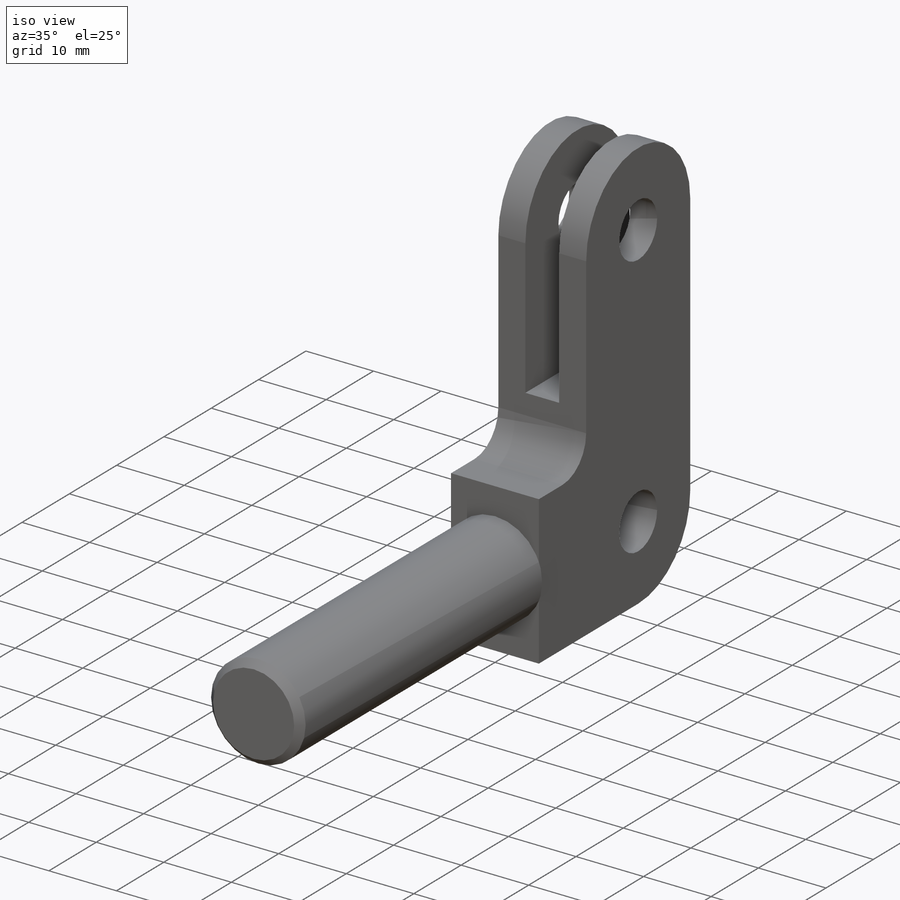
[diagram: iso view]
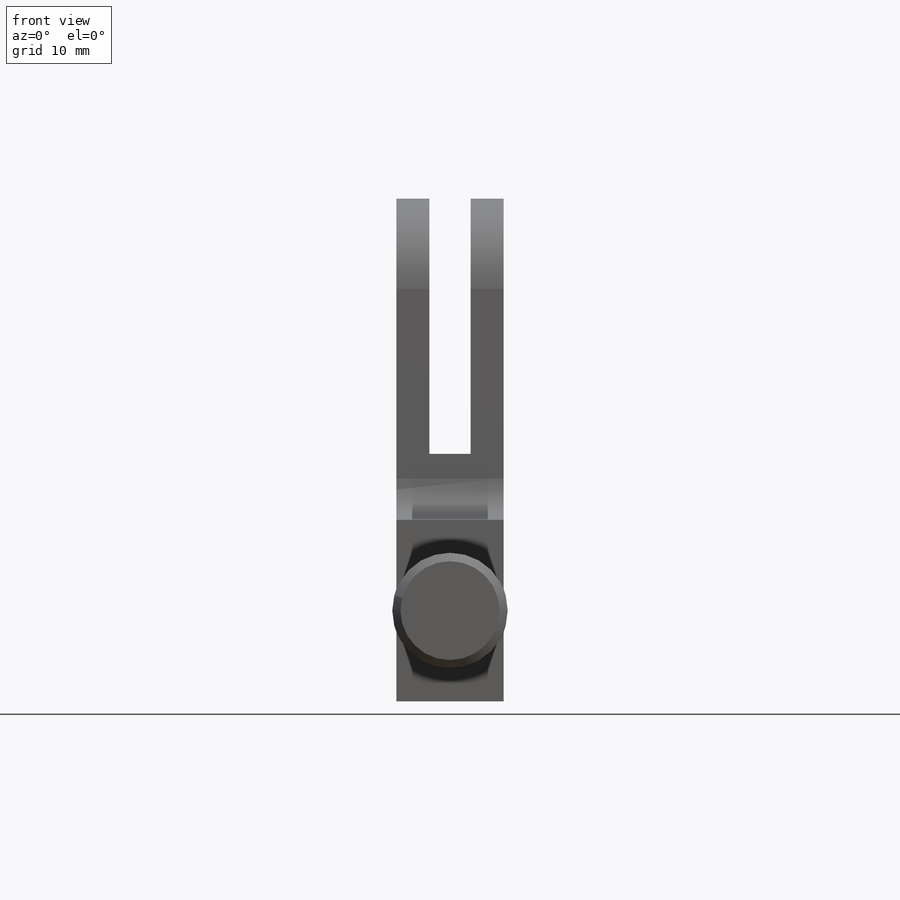
[diagram: front view]
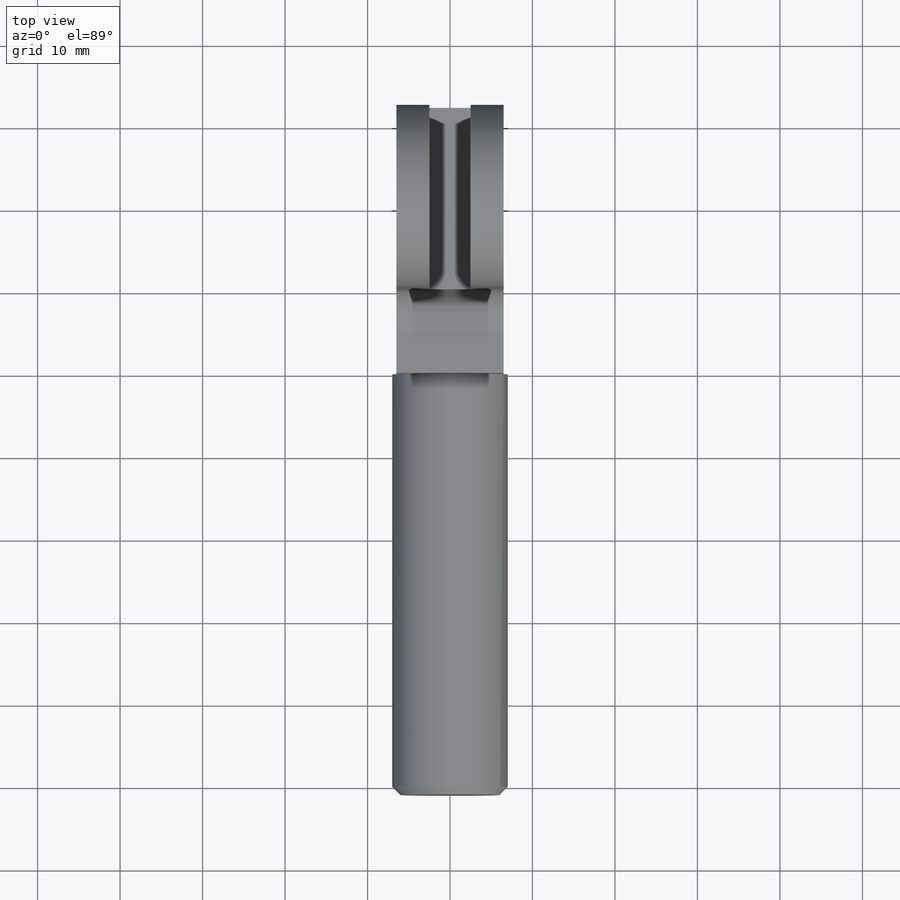
[diagram: top view]
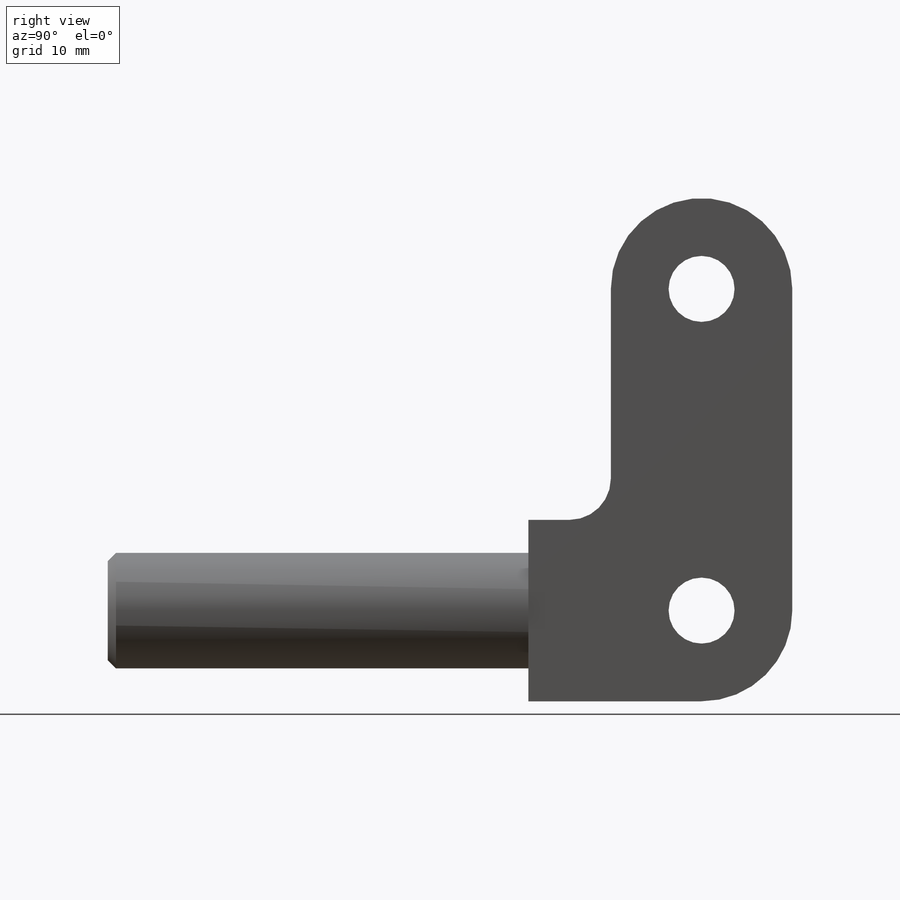
[diagram: right view]
SOLIDWORKS PART (.sldprt)
format: sldprt  version: not decoded by parser v0  size: 204,800 bytes
history: native  units: mm
features: sketch x4, extrude x2, cut_extrude x2, material x1, chamfer x1, plane x1 (+13 scaffold rows collapsed)
feature tree (24):
  scaffold x13  (default folders/planes/origin — collapsed)
  material  "Material <not specified>"
  sketch  "Sketch2"  dims[D2=11.0mm D3=11.0mm D4=5.0mm D1=32.0mm D5=22.0mm D6=50.0mm]
  extrude  "Boss-Extrude1"  Depth=13mm
  sketch  "Sketch3"  dims[D1=30.0mm D2=5.0mm]
  cut_extrude  "Cut-Extrude4"  Depth=63mm
  sketch  "Sketch4"  dims[D1=14.0mm D2=11.0mm]
  extrude  "Boss-Extrude2"  Depth=51mm
  chamfer  "Chamfer1"  Distance=1mm Angle=45deg
  sketch  "Sketch5"  dims[D1=8.0mm D2=8.0mm]
  cut_extrude  "Cut-Extrude5"  Depth=51mm
  plane  "Plane1"  Offset=40mm
decode coverage: 9 of 9 modeling features carry decoded parameters
note: suppression state not decoded; provenance and decode notes live in map.json
